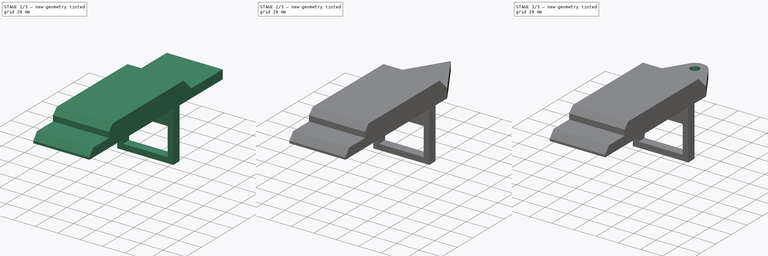
[diagram: build sequence overview — one tinted view per stage of 3, left to right]
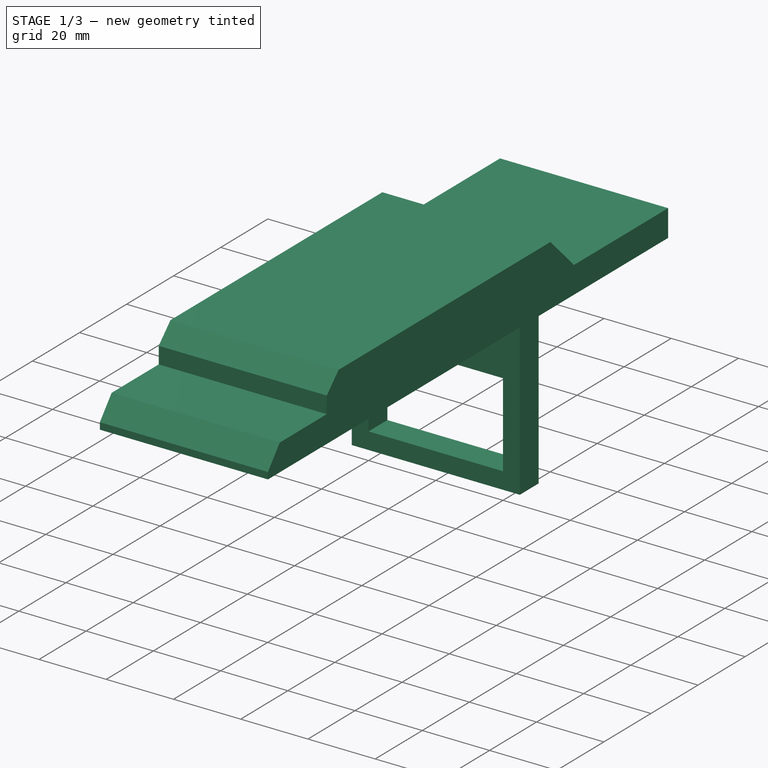
[diagram: stage 1 of 3 — iso view after this stage's code; geometry added in this stage tinted green]
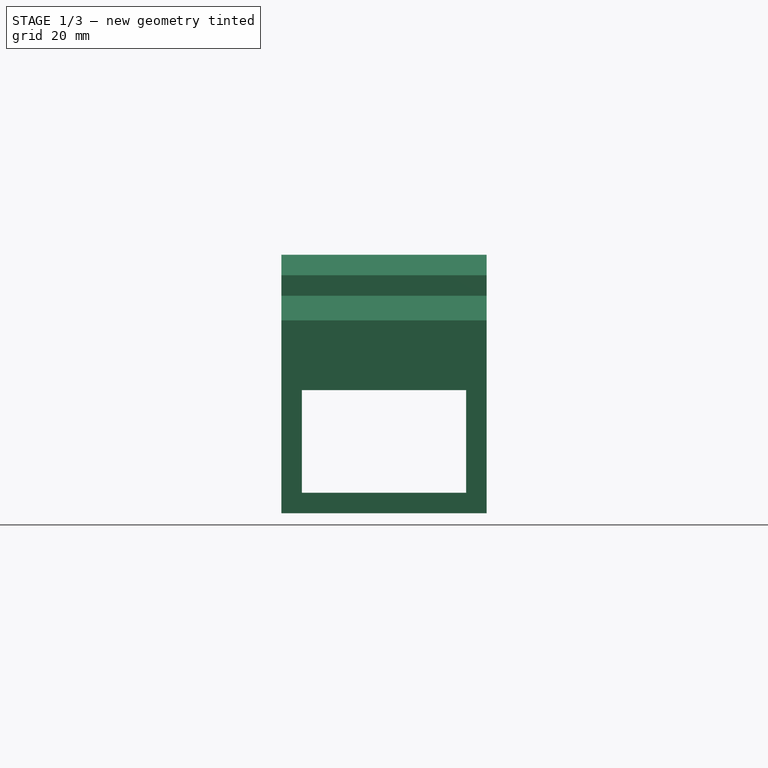
[diagram: stage 1 of 3 — front view after this stage's code; geometry added in this stage tinted green]
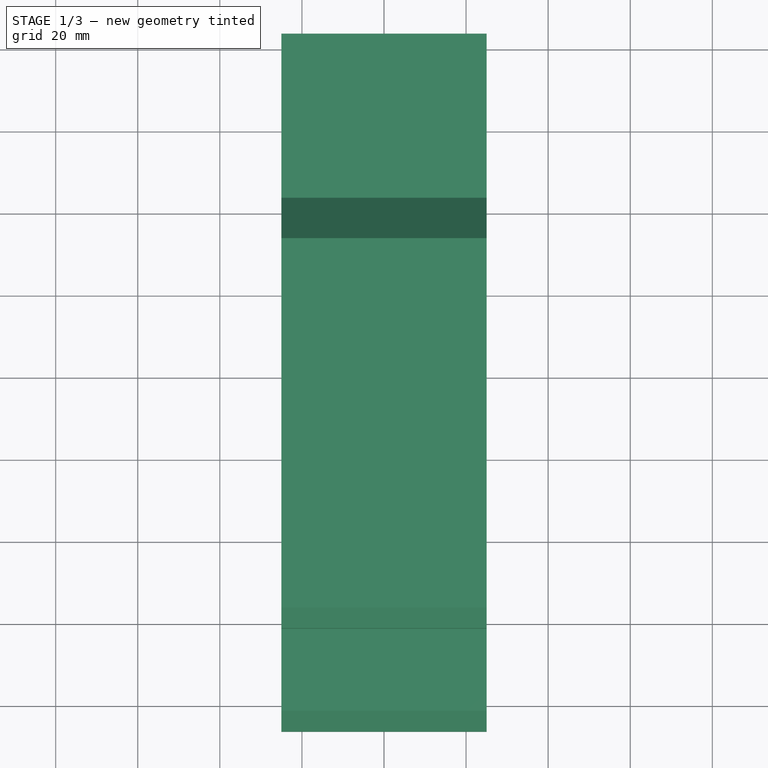
[diagram: stage 1 of 3 — top view after this stage's code; geometry added in this stage tinted green]
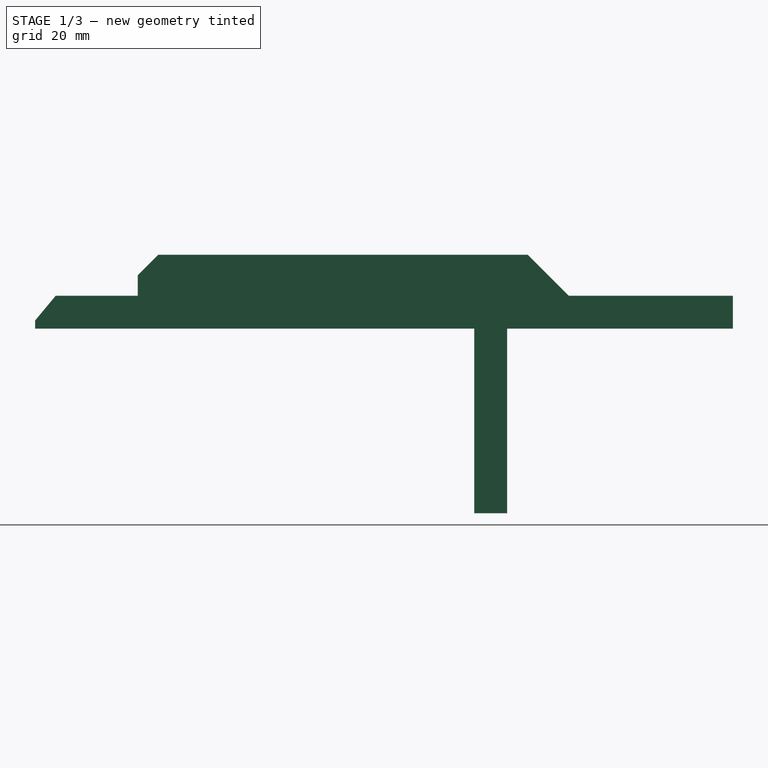
[diagram: stage 1 of 3 — right view after this stage's code; geometry added in this stage tinted green]
FCSTD DOCUMENT  (FreeCAD 0.16R)
Label: Ejer 34
License: All rights reserved
LicenseURL: http://en.wikipedia.org/wiki/All_rights_reserved
objects: Sketcher::SketchObject×4, PartDesign::Pocket×3, PartDesign::Pad×1, PartDesign::Mirrored×1, PartDesign::Fillet×1
note: 14 computed .brp shape members not serialized (recipe doc carries the construction recipe); baked Part::Feature solids carry a one-line shape summary decoded from their .brp

FEATURE [Sketcher::SketchObject] Sketch
  Placement = pos=(0,0,0) rot=(0.57735,0.57735,0.57735;2.0944rad)
  sketch-geometry (16):
    g0: LineSegment StartX=-107 StartY=0 StartZ=0 EndX=0 EndY=0 EndZ=0
    g1: LineSegment StartX=0 StartY=0 StartZ=0 EndX=0 EndY=-45 EndZ=0
    g2: LineSegment StartX=0 StartY=-45 StartZ=0 EndX=8 EndY=-45 EndZ=0
    g3: LineSegment StartX=8 StartY=-45 StartZ=0 EndX=8 EndY=0 EndZ=0
    g4: LineSegment StartX=8 StartY=0 StartZ=0 EndX=63 EndY=0 EndZ=0
    g5: LineSegment StartX=63 StartY=0 StartZ=0 EndX=63 EndY=8 EndZ=0
    g6: LineSegment StartX=63 StartY=8 StartZ=0 EndX=23 EndY=8 EndZ=0
    g7: LineSegment StartX=23 StartY=8 StartZ=0 EndX=13 EndY=18 EndZ=0
    g8: LineSegment StartX=-107 StartY=0 StartZ=0 EndX=-107 EndY=2 EndZ=0
    g9: LineSegment StartX=-107 StartY=2 StartZ=0 EndX=-102 EndY=8 EndZ=0
    g10: LineSegment StartX=-102 StartY=8 StartZ=0 EndX=-82 EndY=8 EndZ=0
    g11: LineSegment StartX=-82 StartY=8 StartZ=0 EndX=-82 EndY=13 EndZ=0
    g12: LineSegment StartX=-82 StartY=13 StartZ=0 EndX=-77 EndY=18 EndZ=0
    g13: LineSegment StartX=-77 StartY=18 StartZ=0 EndX=13 EndY=18 EndZ=0
    g14: LineSegment [constr] StartX=63 StartY=8 StartZ=0 EndX=56.3372 EndY=8 EndZ=0
    g15: LineSegment [constr] StartX=-75.9857 StartY=13 StartZ=0 EndX=-48.1161 EndY=13 EndZ=0
  constraints (46):
    c: PointOnObject(g0,g-1)
    c: PointOnObject(g0,g-1)
    c: Coincident(g0,g1)
    c: Vertical(g1)
    c: Coincident(g1,g2)
    c: Coincident(g2,g3)
    c: Vertical(g3)
    c: Coincident(g3,g4)
    c: Horizontal(g4)
    c: Coincident(g4,g5)
    c: Coincident(g5,g6)
    c: Horizontal(g6)
    c: Coincident(g6,g7)
    c: Coincident(g0,g8)
    c: Vertical(g8)
    c: Coincident(g8,g9)
    c: Coincident(g9,g10)
    c: Horizontal(g10)
    c: Coincident(g10,g11)
    c: Vertical(g11)
    c: Coincident(g11,g12)
    c: Coincident(g12,g13)
    c: Coincident(g13,g7)
    c: Horizontal(g13)
    c: DistanceX(g0,g0) = 107
    c: DistanceY(g1,g1) = 45
    c: Horizontal(g2)
    c: DistanceX(g2,g2) = 8
    c: DistanceX(g4,g4) = 55
    c: Vertical(g5)
    c: DistanceY(g5,g5) = 8
    c: DistanceX(g6,g6) = 40
    c: Coincident(g14,g5)
    c: Horizontal(g14)
    c: Angle(g7,g14) = 0.785398
    c: DistanceY(g3,g7) = 18
    c: Horizontal(g15)
    c: PointOnObject(g11,g15)
    c: Angle(g15,g12) = 0.785398
    c: DistanceX(g11,g12) = 5
    c: DistanceX(g10,g10) = 20
    c: DistanceX(g8,g9) = 5
    c: DistanceY(g0,g8) = 2
    c: DistanceY(g2,g3) = 45
    c: Coincident(g-1,g0)
    c: DistanceY(g0,g9) = 8
FEATURE [PartDesign::Pad] Pad
  Length = 50
  Length2 = 100
  Midplane = true
  Placement = pos=(0,0,0) rot=(0.57735,0.57735,0.57735;2.0944rad)
  Sketch = -> Sketch
  Type = 0
FEATURE [Sketcher::SketchObject] Sketch001
  ExternalGeometry = -> [Pad]
  Placement = pos=(0,0,0) rot=(0.57735,0.57735,-0.57735;2.0944rad)
  Support = -> Pad [Face2]
  sketch-geometry (4):
    g0: LineSegment StartX=15 StartY=20 StartZ=0 EndX=40 EndY=20 EndZ=0
    g1: LineSegment StartX=40 StartY=20 StartZ=0 EndX=40 EndY=-20 EndZ=0
    g2: LineSegment StartX=40 StartY=-20 StartZ=0 EndX=15 EndY=-20 EndZ=0
    g3: LineSegment StartX=15 StartY=-20 StartZ=0 EndX=15 EndY=20 EndZ=0
  constraints (12):
    c: Coincident(g0,g1)
    c: Coincident(g1,g2)
    c: Coincident(g2,g3)
    c: Coincident(g3,g0)
    c: Horizontal(g0)
    c: Horizontal(g2)
    c: Vertical(g1)
    c: Vertical(g3)
    c: DistanceY(g0,g-3) = 5
    c: DistanceX(g0,g-3) = 5
    c: DistanceX(g2,g2) = 25
    c: DistanceY(g1,g0) = 40
FEATURE [PartDesign::Pocket] Pocket
  Length = 5
  Placement = pos=(0,0,0) rot=(0.57735,0.57735,0.57735;2.0944rad)
  Sketch = -> Sketch001
  Type = 1
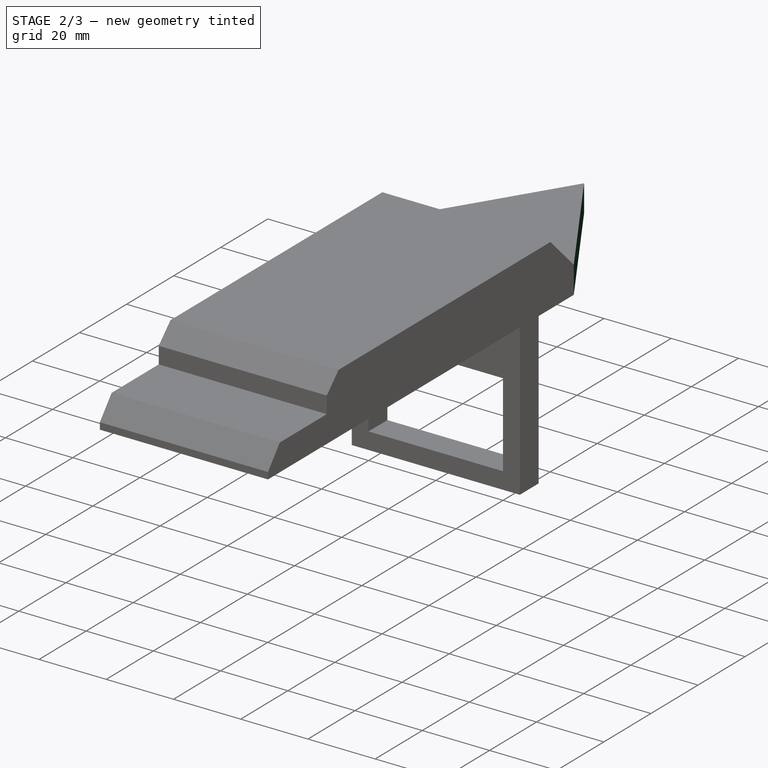
[diagram: stage 2 of 3 — iso view after this stage's code; geometry added in this stage tinted green]
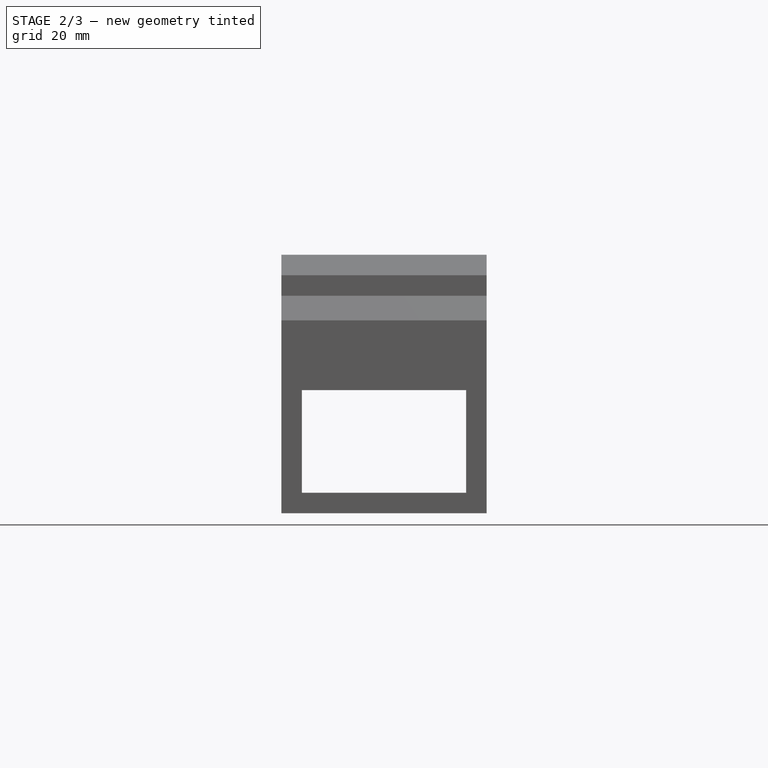
[diagram: stage 2 of 3 — front view after this stage's code; geometry added in this stage tinted green]
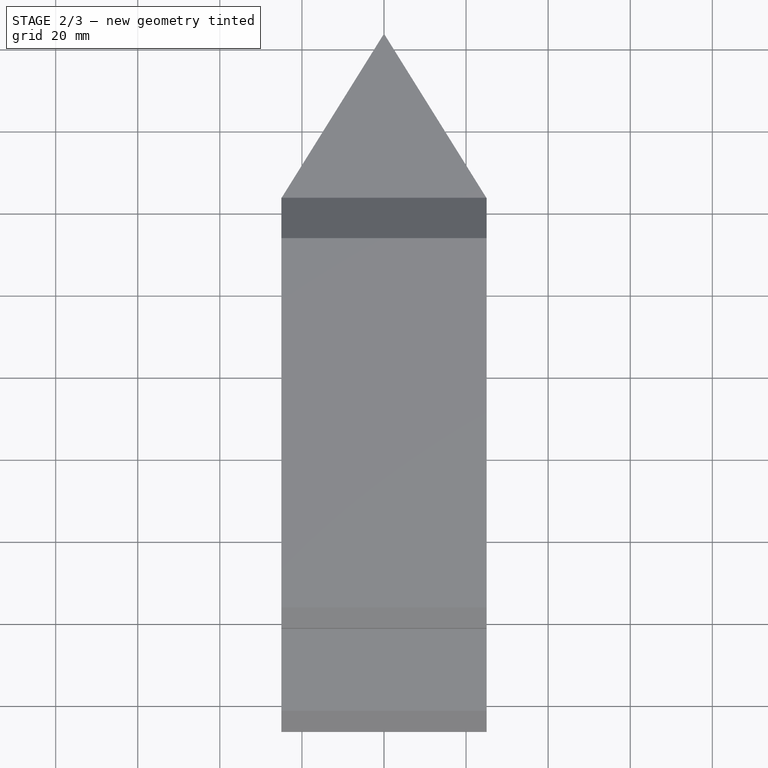
[diagram: stage 2 of 3 — top view after this stage's code; geometry added in this stage tinted green]
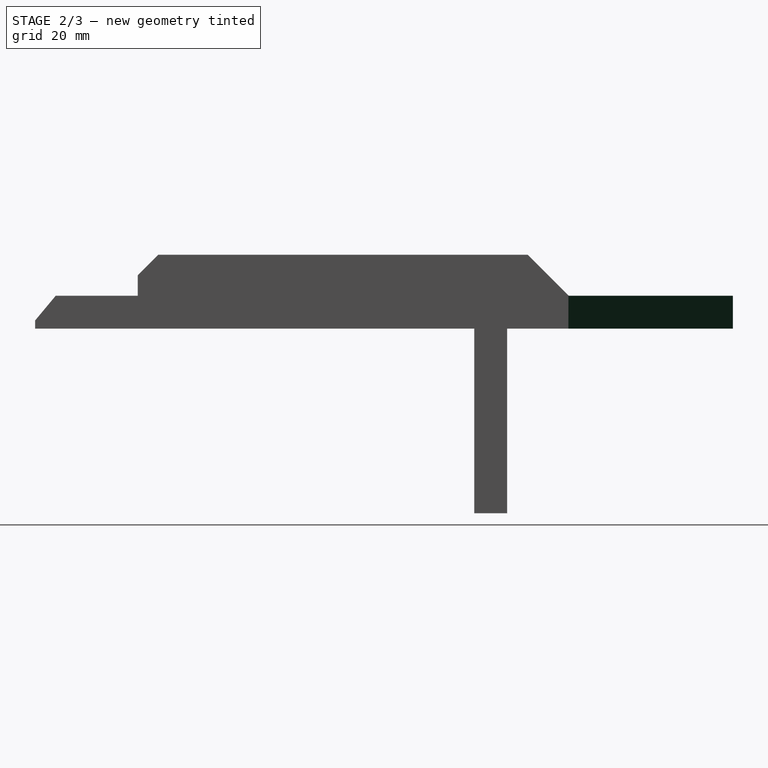
[diagram: stage 2 of 3 — right view after this stage's code; geometry added in this stage tinted green]
FEATURE [Sketcher::SketchObject] Sketch002
  ExternalGeometry = -> [Pocket]
  Placement = pos=(0,0,8) rot=(0,0,-1;1.5708rad)
  Support = -> Pocket [Face15]
  sketch-geometry (3):
    g0: LineSegment StartX=-22.9118 StartY=-25 StartZ=0 EndX=-63 EndY=0 EndZ=0
    g1: LineSegment StartX=-63 StartY=0 StartZ=0 EndX=-63 EndY=-25 EndZ=0
    g2: LineSegment StartX=-63 StartY=-25 StartZ=0 EndX=-22.9118 EndY=-25 EndZ=0
  constraints (7):
    c: Coincident(g0,g1)
    c: Coincident(g1,g-4)
    c: Coincident(g1,g2)
    c: Coincident(g2,g0)
    c: Horizontal(g2)
    c: PointOnObject(g0,g-3)
    c: PointOnObject(g0,g-1)
FEATURE [PartDesign::Pocket] Pocket001
  Length = 5
  Placement = pos=(0,0,0) rot=(0.57735,0.57735,0.57735;2.0944rad)
  Sketch = -> Sketch002
  Type = 1
FEATURE [PartDesign::Mirrored] Mirrored
  MirrorPlane = -> Sketch002 [H_Axis]
  Originals = -> [Pocket001]
  Placement = pos=(0,0,0) rot=(0.57735,0.57735,0.57735;2.0944rad)
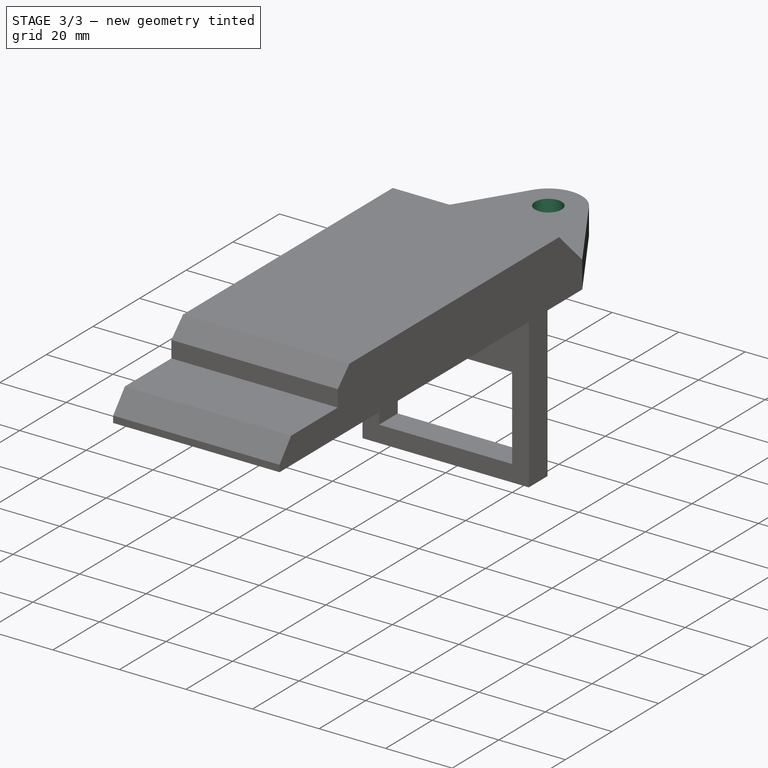
[diagram: stage 3 of 3 — iso view after this stage's code; geometry added in this stage tinted green]
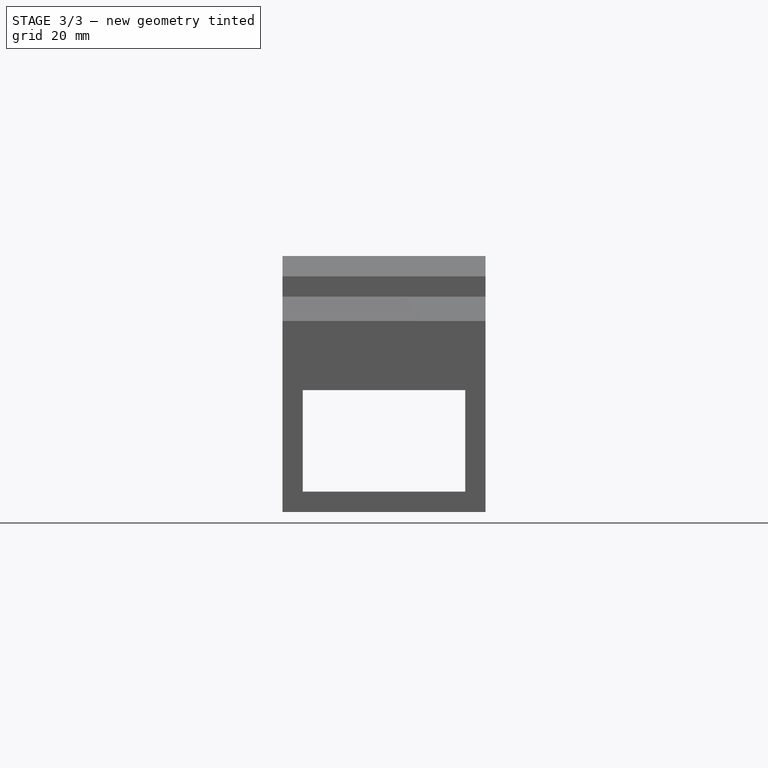
[diagram: stage 3 of 3 — front view after this stage's code; geometry added in this stage tinted green]
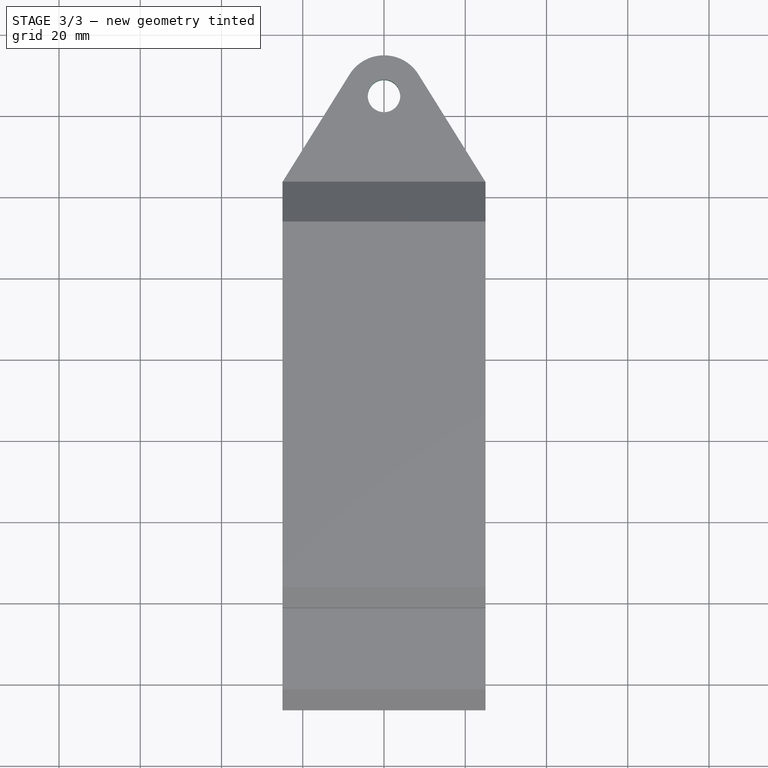
[diagram: stage 3 of 3 — top view after this stage's code; geometry added in this stage tinted green]
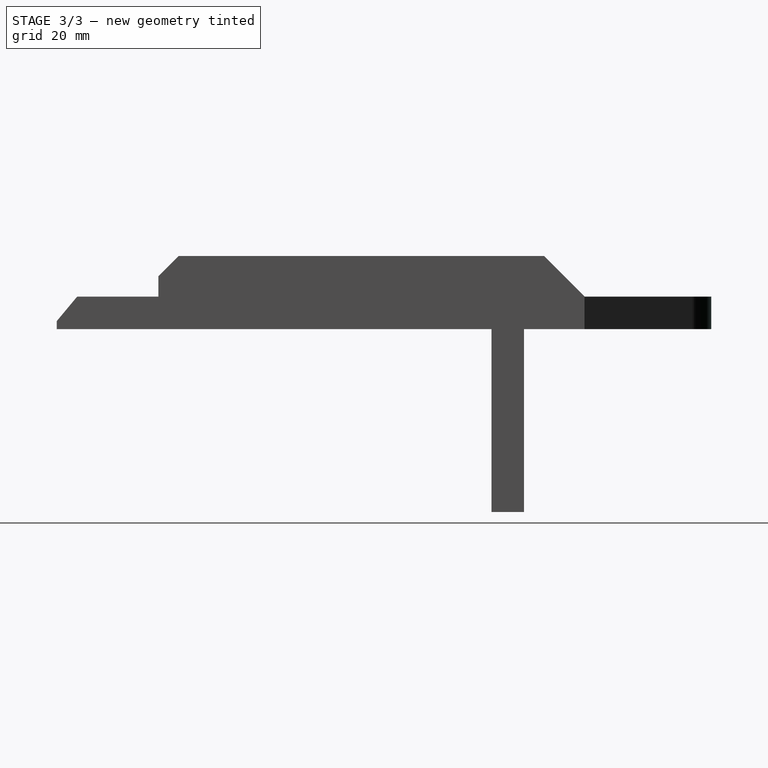
[diagram: stage 3 of 3 — right view after this stage's code; geometry added in this stage tinted green]
FEATURE [PartDesign::Fillet] Fillet
  Base = -> Mirrored [Edge57]
  Placement = pos=(0,0,0) rot=(0.57735,0.57735,0.57735;2.0944rad)
  Radius = 10
FEATURE [Sketcher::SketchObject] Sketch003
  ExternalGeometry = -> [Fillet]
  Placement = pos=(0,0,8) rot=(0,0,-1;1.5708rad)
  Support = -> Fillet [Face2]
  sketch-geometry (1):
    g0: Circle CenterX=-44.1021 CenterY=0 CenterZ=0 NormalX=0 NormalY=0 NormalZ=1 Radius=4
  constraints (2):
    c: Radius(g0) = 4
    c: Coincident(g0,g-3)
FEATURE [PartDesign::Pocket] Pocket002
  Length = 5
  Placement = pos=(0,0,0) rot=(0.57735,0.57735,0.57735;2.0944rad)
  Sketch = -> Sketch003
  Type = 1
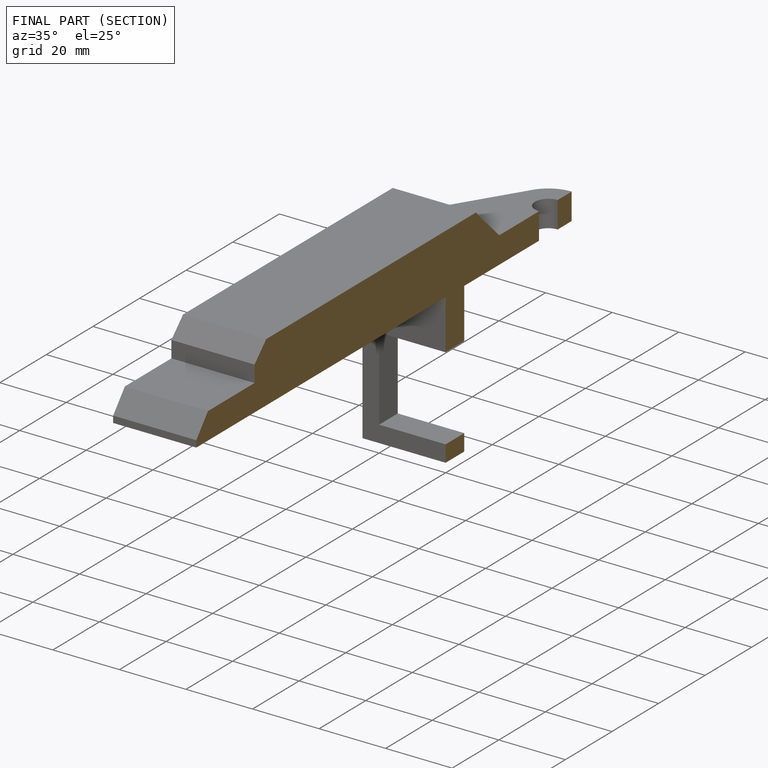
[diagram: finished part — half-section view (interior)]
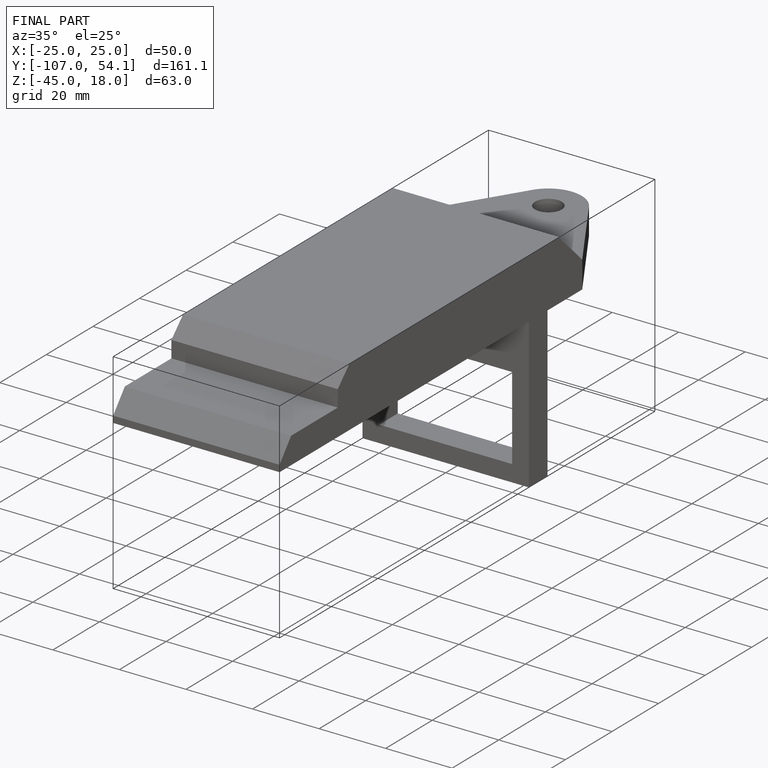
[diagram: finished part — iso view with bounding-box wireframe]
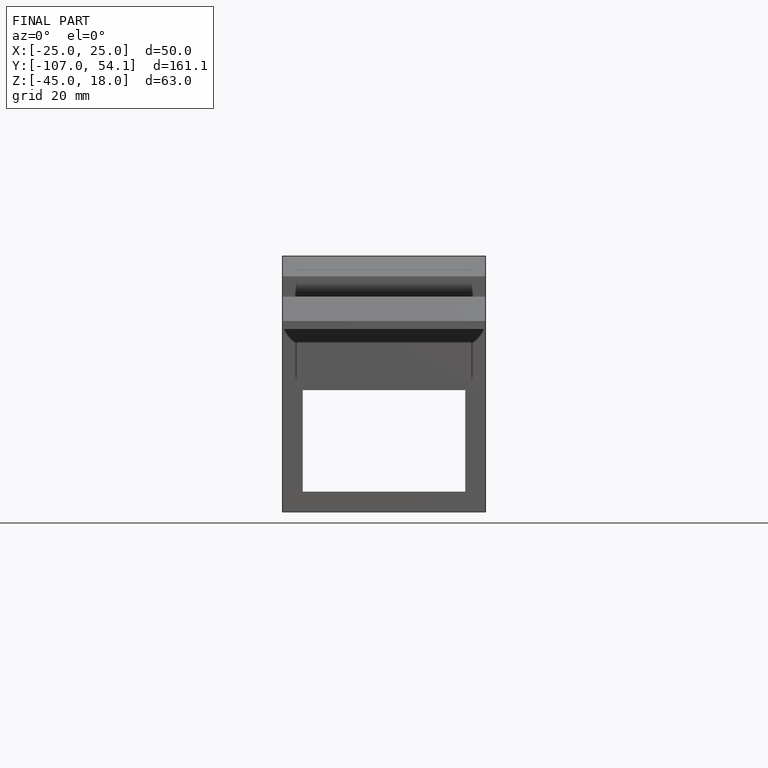
[diagram: finished part — front view with bounding-box wireframe]
